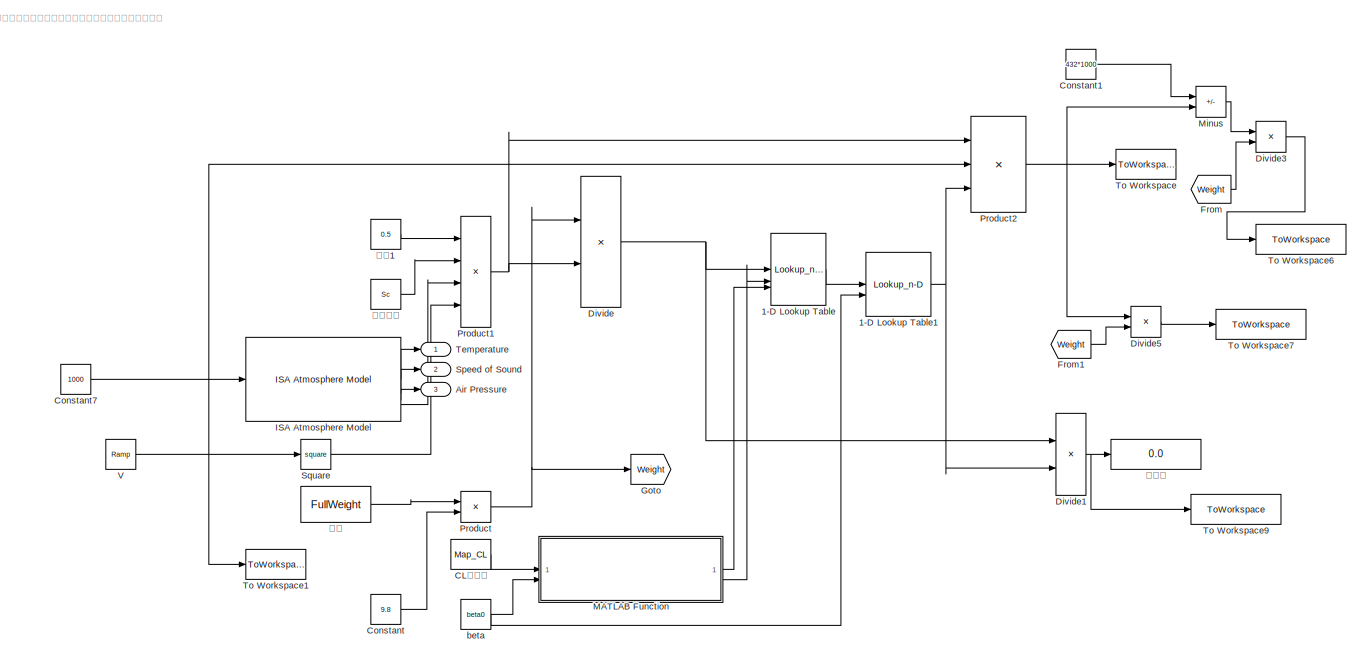
[diagram: root canvas - part 1/4, top right region]
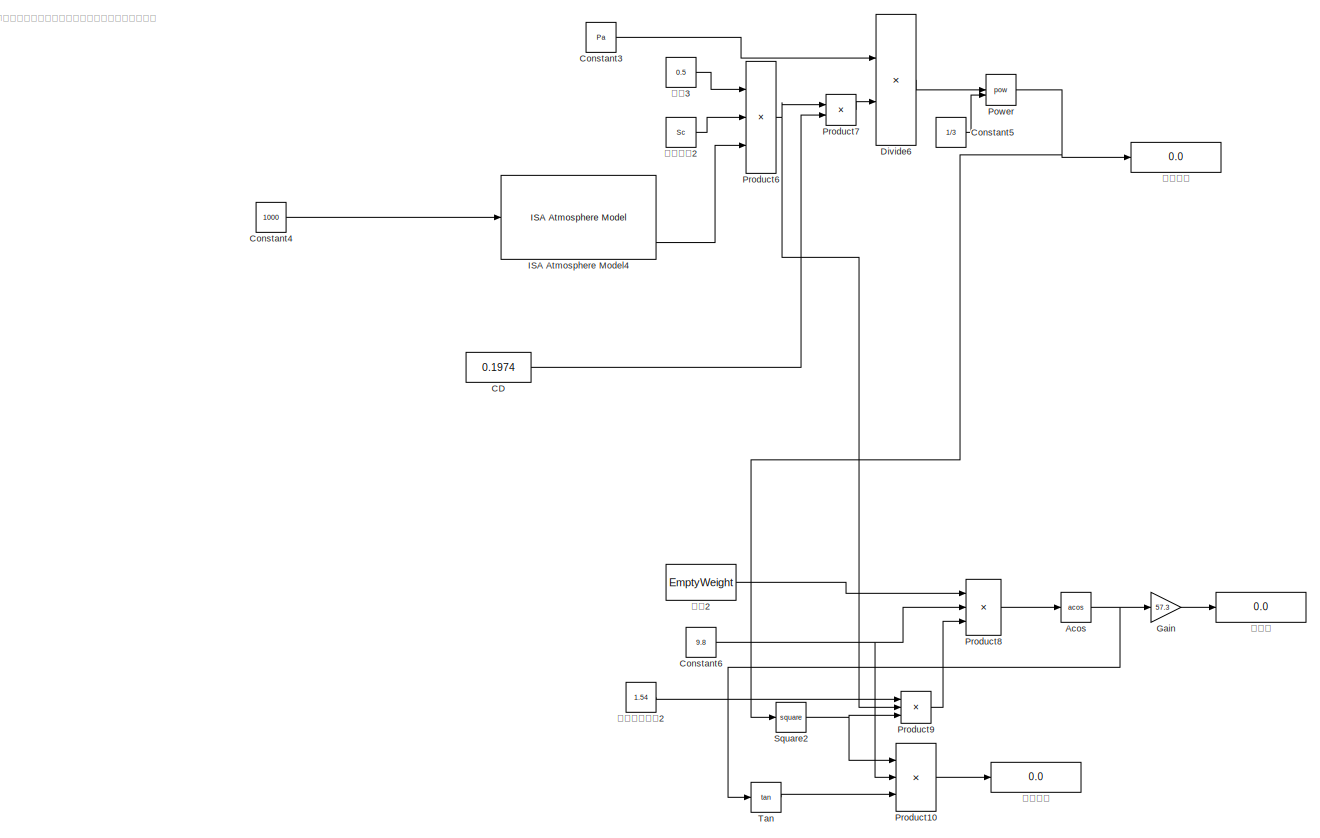
[diagram: root canvas - part 2/4, top left region]
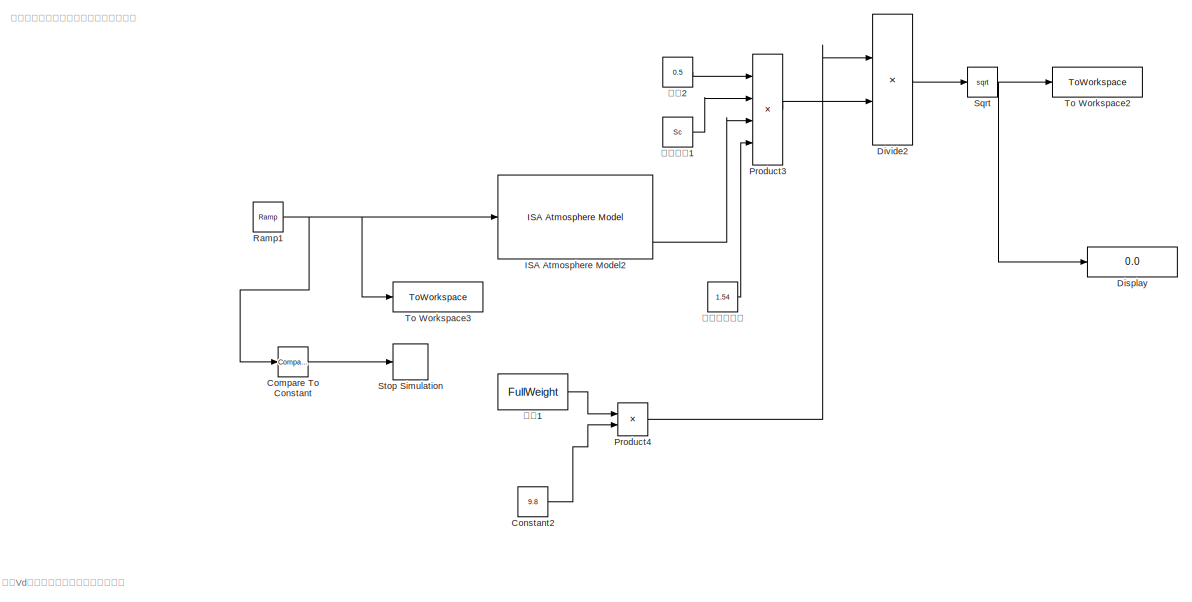
[diagram: root canvas - part 3/4, middle right region]
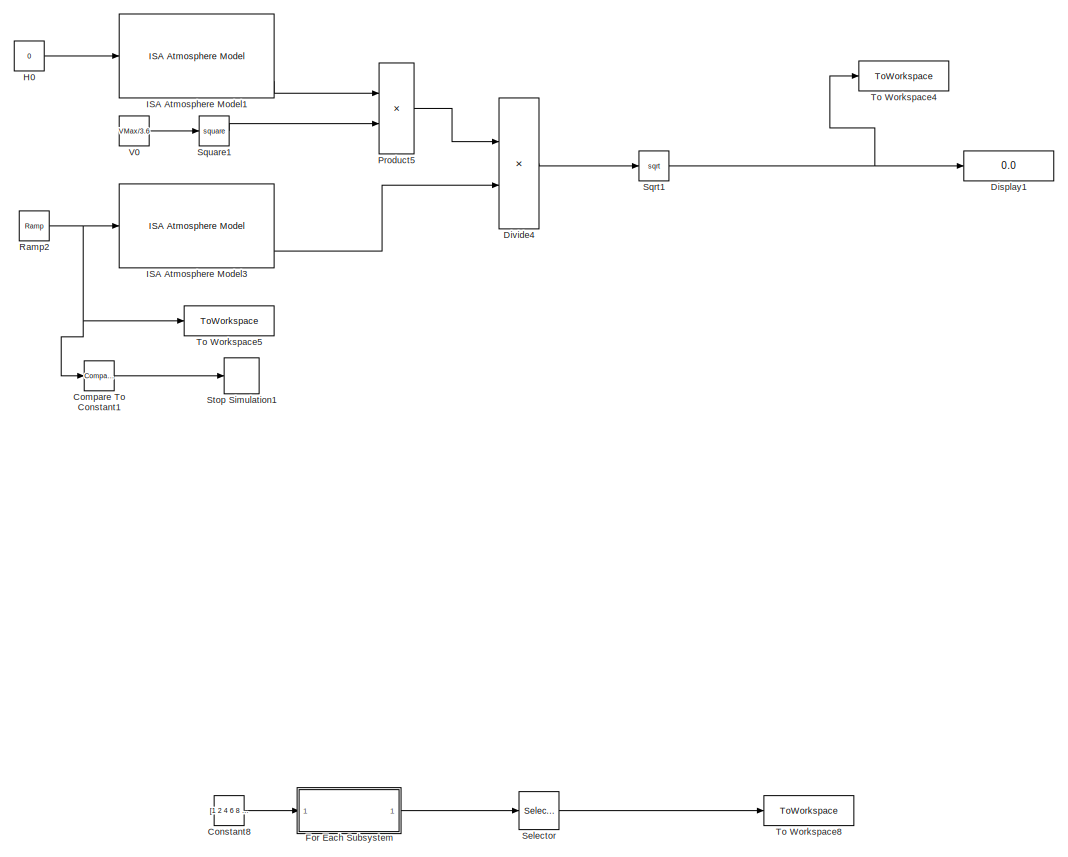
[diagram: root canvas - part 4/4, bottom right region]
MODEL slx_c84eef1aaa8e
KIND model
CONFIG AbsTol = auto
CONFIG EnableMultiTasking = off
CONFIG FixedStep = auto
CONFIG MaxStep = auto
CONFIG MinStep = auto
CONFIG RelTol = 1e-3
CONFIG SampleTimeConstraint = Unconstrained
CONFIG SolverName = VariableStepAuto
CONFIG StartTime = 0.0
CONFIG StopTime = 60
BLOCK [Lookup_n-D] 1-D Lookup Table
  BreakpointsForDimension1 = [-5:5]
  BreakpointsForDimension1Source = Input port
  InputPortMap = u0,p221,p5
  InternalRulePriority = Speed
  NumberOfTableDimensions = 1
  RndMeth = Simplest
  Table = tanh([-5:5])
  TableSource = Input port
BLOCK [Lookup_n-D] 1-D Lookup Table1
  BreakpointsForDimension1 = [0 4 8]
  BreakpointsForDimension2 = [0 5 10 15 20 25]
  InputPortMap = u0,u1
  InternalRulePriority = Speed
  RndMeth = Simplest
  Table = Map_CD
BLOCK [Trigonometry] Acos
  Operator = acos
BLOCK [Outport] Air Pressure
  Port = 3
BLOCK [Constant] CD
  Value = 0.1974
BLOCK [Constant] CL插值表
  Value = Map_CL
BLOCK [Reference] Compare To Constant  REF=simulink/Logic and Bit
Operations/Compare
To Constant
  SourceBlock = simulink/Logic and Bit\nOperations/Compare\nTo Constant
  SourceType = Compare To Constant
BLOCK [Reference] Compare To Constant1  REF=simulink/Logic and Bit
Operations/Compare
To Constant
  SourceBlock = simulink/Logic and Bit\nOperations/Compare\nTo Constant
  SourceType = Compare To Constant
BLOCK [Constant] Constant
  NameLocation = left
  Value = 9.8
BLOCK [Constant] Constant1
  Value = 432*1000
BLOCK [Constant] Constant2
  NameLocation = left
  Value = 9.8
BLOCK [Constant] Constant3
  NameLocation = left
  Value = Pa
BLOCK [Constant] Constant4
  Value = 1000
BLOCK [Constant] Constant5
  Value = 1/3
BLOCK [Constant] Constant6
  Value = 9.8
BLOCK [Constant] Constant7
  Value = 1000
BLOCK [Constant] Constant8
  Value = [1 2 4 6 8 10]*1000
BLOCK [Display] Display
  Decimation = 1
BLOCK [Display] Display1
  Decimation = 1
BLOCK [Product] Divide
  Inputs = */
BLOCK [Product] Divide1
  Inputs = */
BLOCK [Product] Divide2
  Inputs = */
BLOCK [Product] Divide3
  Inputs = */
BLOCK [Product] Divide4
  Inputs = */
BLOCK [Product] Divide5
  Inputs = */
BLOCK [Product] Divide6
  Inputs = */
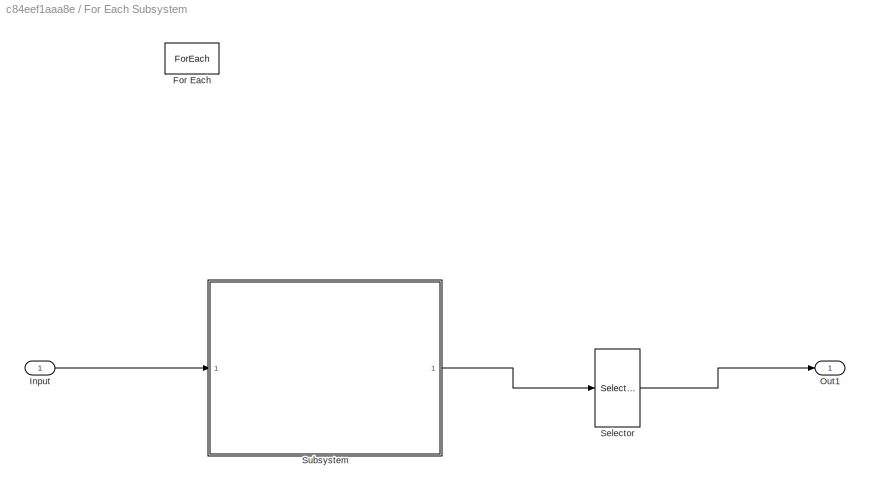
BLOCK [SubSystem] For Each Subsystem
  TreatAsAtomicUnit = on
BLOCK [ForEach] For Each Subsystem/For Each
  DisableCoverage = on
BLOCK [Inport] For Each Subsystem/Input
  Partition = on
  PartitionDimension = 2
  PartitionOffset = 0
  PartitionWidth = 1
BLOCK [Outport] For Each Subsystem/Out1
  ConcatenationDimension = 1
BLOCK [Selector] For Each Subsystem/Selector
  IndexOptions = Index vector (dialog)
  Indices = [1]
  InputPortWidth = 6
  OutputSizes = 1
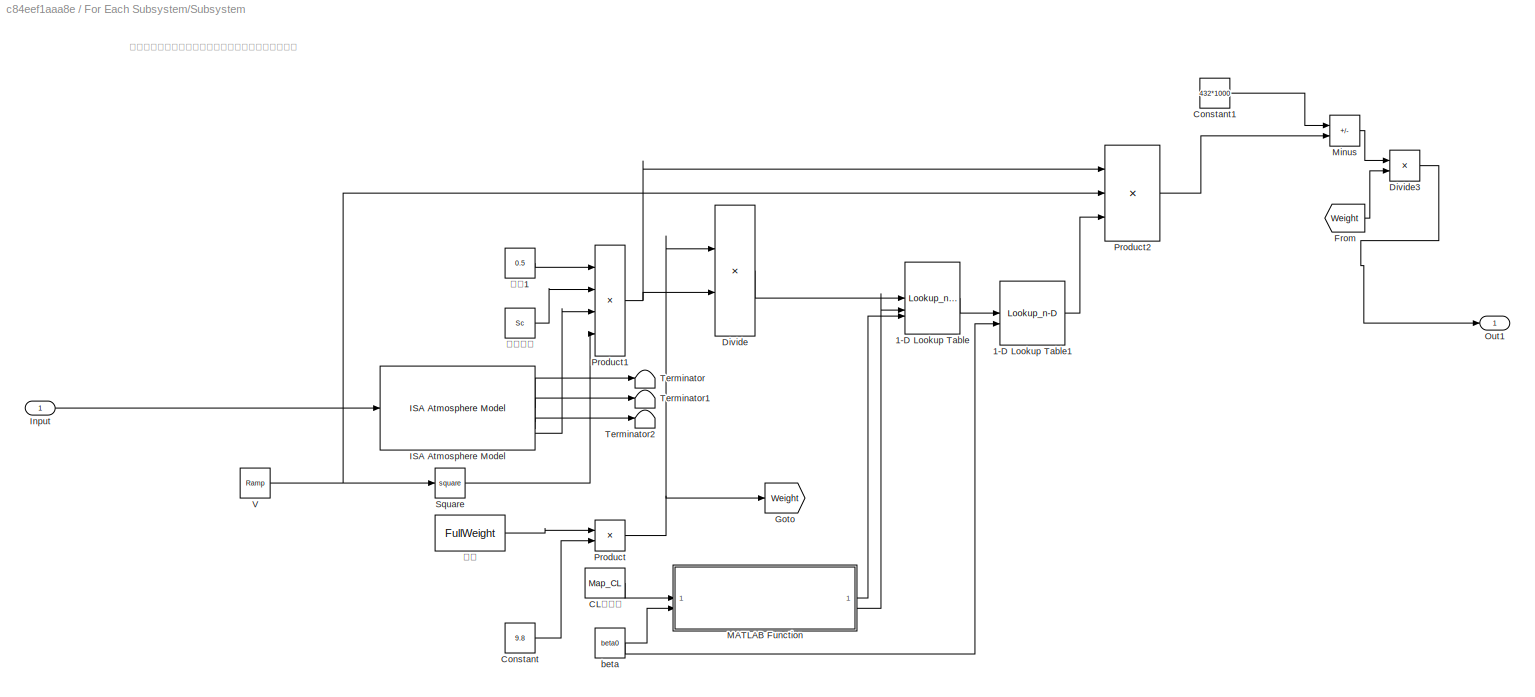
BLOCK [SubSystem] For Each Subsystem/Subsystem
BLOCK [Lookup_n-D] For Each Subsystem/Subsystem/1-D Lookup Table
  BreakpointsForDimension1 = [-5:5]
  BreakpointsForDimension1Source = Input port
  InputPortMap = u0,p221,p5
  InternalRulePriority = Speed
  NumberOfTableDimensions = 1
  RndMeth = Simplest
  Table = tanh([-5:5])
  TableSource = Input port
BLOCK [Lookup_n-D] For Each Subsystem/Subsystem/1-D Lookup Table1
  BreakpointsForDimension1 = [0 4 8]
  BreakpointsForDimension2 = [0 5 10 15 20 25]
  InputPortMap = u0,u1
  InternalRulePriority = Speed
  RndMeth = Simplest
  Table = Map_CD
BLOCK [Constant] For Each Subsystem/Subsystem/CL插值表
  Value = Map_CL
BLOCK [Constant] For Each Subsystem/Subsystem/Constant
  NameLocation = left
  Value = 9.8
BLOCK [Constant] For Each Subsystem/Subsystem/Constant1
  Value = 432*1000
BLOCK [Product] For Each Subsystem/Subsystem/Divide
  Inputs = */
BLOCK [Product] For Each Subsystem/Subsystem/Divide3
  Inputs = */
BLOCK [From] For Each Subsystem/Subsystem/From
  GotoTag = Weight
BLOCK [Goto] For Each Subsystem/Subsystem/Goto
  GotoTag = Weight
BLOCK [Reference] For Each Subsystem/Subsystem/ISA Atmosphere Model  REF=aerolibatmos2/ISA Atmosphere Model
  SourceBlock = aerolibatmos2/ISA Atmosphere Model
  SourceType = International Standard Atmosphere Model
BLOCK [Inport] For Each Subsystem/Subsystem/Input
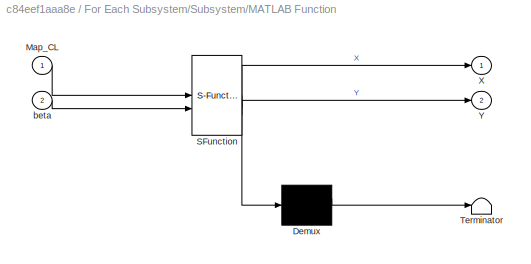
BLOCK [SubSystem] For Each Subsystem/Subsystem/MATLAB Function
  ErrorFcn = Stateflow.Translate.translate
  PermitHierarchicalResolution = ExplicitOnly
  SFBlockType = MATLAB Function
  TreatAsAtomicUnit = on
BLOCK [Demux] For Each Subsystem/Subsystem/MATLAB Function/ Demux 
  Outputs = 1
BLOCK [S-Function] For Each Subsystem/Subsystem/MATLAB Function/ SFunction 
  EnableBusSupport = on
  FunctionName = sf_sfun
  PortCounts = [2 3]
  SFcnIsStateOwnerBlock = off
  SFunctionDeploymentMode = off
  Tag = Stateflow S-Function 2
BLOCK [Terminator] For Each Subsystem/Subsystem/MATLAB Function/ Terminator 
BLOCK [Inport] For Each Subsystem/Subsystem/MATLAB Function/Map_CL
BLOCK [Outport] For Each Subsystem/Subsystem/MATLAB Function/X
BLOCK [Outport] For Each Subsystem/Subsystem/MATLAB Function/Y
  Port = 2
BLOCK [Inport] For Each Subsystem/Subsystem/MATLAB Function/beta
  Port = 2
BLOCK [Sum] For Each Subsystem/Subsystem/Minus
  IconShape = rectangular
  Inputs = +-
BLOCK [Outport] For Each Subsystem/Subsystem/Out1
BLOCK [Product] For Each Subsystem/Subsystem/Product
BLOCK [Product] For Each Subsystem/Subsystem/Product1
  Inputs = 4
BLOCK [Product] For Each Subsystem/Subsystem/Product2
  Inputs = 3
BLOCK [Math] For Each Subsystem/Subsystem/Square
  Operator = square
BLOCK [Terminator] For Each Subsystem/Subsystem/Terminator
BLOCK [Terminator] For Each Subsystem/Subsystem/Terminator1
BLOCK [Terminator] For Each Subsystem/Subsystem/Terminator2
BLOCK [Reference] For Each Subsystem/Subsystem/V  REF=simulink/Sources/Ramp
  SourceBlock = simulink/Sources/Ramp
  SourceType = Ramp
BLOCK [Constant] For Each Subsystem/Subsystem/beta
  Value = beta0
BLOCK [Constant] For Each Subsystem/Subsystem/参考面积
  Value = Sc
BLOCK [Constant] For Each Subsystem/Subsystem/质量
  Value = FullWeight
BLOCK [Constant] For Each Subsystem/Subsystem/速度1
  Value = 0.5
BLOCK [From] From
  GotoTag = Weight
BLOCK [From] From1
  GotoTag = Weight
BLOCK [Gain] Gain
  Gain = 57.3
BLOCK [Goto] Goto
  GotoTag = Weight
BLOCK [Constant] H0
  Value = 0
BLOCK [Reference] ISA Atmosphere Model  REF=aerolibatmos2/ISA Atmosphere Model
  SourceBlock = aerolibatmos2/ISA Atmosphere Model
  SourceType = International Standard Atmosphere Model
BLOCK [Reference] ISA Atmosphere Model1  REF=aerolibatmos2/ISA Atmosphere Model
  SourceBlock = aerolibatmos2/ISA Atmosphere Model
  SourceType = International Standard Atmosphere Model
BLOCK [Reference] ISA Atmosphere Model2  REF=aerolibatmos2/ISA Atmosphere Model
  SourceBlock = aerolibatmos2/ISA Atmosphere Model
  SourceType = International Standard Atmosphere Model
BLOCK [Reference] ISA Atmosphere Model3  REF=aerolibatmos2/ISA Atmosphere Model
  SourceBlock = aerolibatmos2/ISA Atmosphere Model
  SourceType = International Standard Atmosphere Model
BLOCK [Reference] ISA Atmosphere Model4  REF=aerolibatmos2/ISA Atmosphere Model
  SourceBlock = aerolibatmos2/ISA Atmosphere Model
  SourceType = International Standard Atmosphere Model
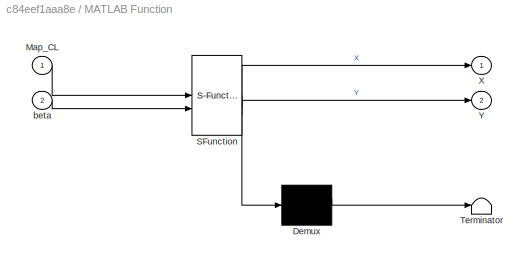
BLOCK [SubSystem] MATLAB Function
  ErrorFcn = Stateflow.Translate.translate
  PermitHierarchicalResolution = ExplicitOnly
  SFBlockType = MATLAB Function
  TreatAsAtomicUnit = on
BLOCK [Demux] MATLAB Function/ Demux 
  Outputs = 1
BLOCK [S-Function] MATLAB Function/ SFunction 
  EnableBusSupport = on
  FunctionName = sf_sfun
  PortCounts = [2 3]
  SFcnIsStateOwnerBlock = off
  SFunctionDeploymentMode = off
  Tag = Stateflow S-Function 1
BLOCK [Terminator] MATLAB Function/ Terminator 
BLOCK [Inport] MATLAB Function/Map_CL
BLOCK [Outport] MATLAB Function/X
BLOCK [Outport] MATLAB Function/Y
  Port = 2
BLOCK [Inport] MATLAB Function/beta
  Port = 2
BLOCK [Sum] Minus
  IconShape = rectangular
  Inputs = +-
BLOCK [Math] Power
  Operator = pow
BLOCK [Product] Product
BLOCK [Product] Product1
  Inputs = 4
BLOCK [Product] Product10
  Inputs = *//
BLOCK [Product] Product2
  Inputs = 3
BLOCK [Product] Product3
  Inputs = 4
BLOCK [Product] Product4
BLOCK [Product] Product5
BLOCK [Product] Product6
  Inputs = 3
BLOCK [Product] Product7
BLOCK [Product] Product8
  Inputs = **/
BLOCK [Product] Product9
  Inputs = 3
BLOCK [Reference] Ramp1  REF=simulink/Sources/Ramp
  SourceBlock = simulink/Sources/Ramp
  SourceType = Ramp
BLOCK [Reference] Ramp2  REF=simulink/Sources/Ramp
  SourceBlock = simulink/Sources/Ramp
  SourceType = Ramp
BLOCK [Selector] Selector
  IndexOptions = Index vector (dialog)
  Indices = [1]
  InputPortWidth = 6
  OutputSizes = 1
BLOCK [Outport] Speed of Sound
  Port = 2
BLOCK [Sqrt] Sqrt
BLOCK [Sqrt] Sqrt1
BLOCK [Math] Square
  Operator = square
BLOCK [Math] Square1
  Operator = square
BLOCK [Math] Square2
  Operator = square
BLOCK [Stop] Stop Simulation
BLOCK [Stop] Stop Simulation1
BLOCK [Trigonometry] Tan
  Operator = tan
BLOCK [Outport] Temperature
BLOCK [ToWorkspace] To Workspace
  FixptAsFi = on
  MaxDataPoints = inf
  SampleTime = -1
  SaveFormat = Structure
  VariableName = Pc
BLOCK [ToWorkspace] To Workspace1
  FixptAsFi = on
  MaxDataPoints = inf
  SampleTime = -1
  SaveFormat = Structure
  VariableName = Velocity
BLOCK [ToWorkspace] To Workspace2
  FixptAsFi = on
  MaxDataPoints = inf
  SampleTime = -1
  SaveFormat = Structure
  VariableName = VLeft
BLOCK [ToWorkspace] To Workspace3
  FixptAsFi = on
  MaxDataPoints = inf
  SampleTime = -1
  SaveFormat = Structure
  VariableName = LeftHeight
BLOCK [ToWorkspace] To Workspace4
  FixptAsFi = on
  MaxDataPoints = inf
  SampleTime = -1
  SaveFormat = Structure
  VariableName = VRight
BLOCK [ToWorkspace] To Workspace5
  FixptAsFi = on
  MaxDataPoints = inf
  SampleTime = -1
  SaveFormat = Structure
  VariableName = RightHeight
BLOCK [ToWorkspace] To Workspace6
  FixptAsFi = on
  MaxDataPoints = inf
  SampleTime = -1
  SaveFormat = Structure
  VariableName = VClimb
BLOCK [ToWorkspace] To Workspace7
  FixptAsFi = on
  MaxDataPoints = inf
  SampleTime = -1
  SaveFormat = Structure
  VariableName = VDescend
BLOCK [ToWorkspace] To Workspace8
  FixptAsFi = on
  MaxDataPoints = inf
  SampleTime = -1
  SaveFormat = Timeseries
  VariableName = simout
BLOCK [ToWorkspace] To Workspace9
  FixptAsFi = on
  MaxDataPoints = inf
  SampleTime = -1
  SaveFormat = Structure
  VariableName = LD
BLOCK [Reference] V  REF=simulink/Sources/Ramp
  SourceBlock = simulink/Sources/Ramp
  SourceType = Ramp
BLOCK [Constant] V0
  Value = VMax/3.6
BLOCK [Constant] beta
  Value = beta0
BLOCK [Display] 倾斜角
  Decimation = 1
BLOCK [Display] 升阻比
  Decimation = 1
BLOCK [Constant] 参考面积
  Value = Sc
BLOCK [Constant] 参考面积1
  Value = Sc
BLOCK [Constant] 参考面积2
  Value = Sc
BLOCK [Constant] 最大升力系数
  Value = 1.54
BLOCK [Constant] 最大升力系数2
  Value = 1.54
BLOCK [Display] 盘旋半径
  Decimation = 1
BLOCK [Display] 盘旋速度
  Decimation = 1
BLOCK [Constant] 质量
  Value = FullWeight
BLOCK [Constant] 质量1
  Value = FullWeight
BLOCK [Constant] 质量2
  Value = EmptyWeight
BLOCK [Constant] 速度1
  Value = 0.5
BLOCK [Constant] 速度2
  Value = 0.5
BLOCK [Constant] 速度3
  Value = 0.5
ANNOTATION (root): 计算不同高度和侧滑角下需用功率，预估最大平飞速度
ANNOTATION (root): 根据Vd俯冲速度，计算飞行包线右边界
ANNOTATION (root): 根据最大升力系数和最大可用功率计算最小盘旋半径
ANNOTATION (root): 根据最大升力系数，计算飞行包线左边界
ANNOTATION For Each Subsystem/Subsystem: 计算不同高度和侧滑角下需用功率，预估最大平飞速度
NET 1-D Lookup Table1:1 -> Divide1:2, Product2:3
LINE 1-D Lookup Table:1 -> 1-D Lookup Table1:1
NET Acos:1 -> Gain:1, Tan:1
LINE CD:1 -> Product7:2
LINE CL插值表:1 -> MATLAB Function:1
LINE Compare To Constant1:1 -> Stop Simulation1:1
LINE Compare To Constant:1 -> Stop Simulation:1
LINE Constant1:1 -> Minus:1
LINE Constant2:1 -> Product4:2
LINE Constant3:1 -> Divide6:1
LINE Constant4:1 -> ISA Atmosphere Model4:1
LINE Constant5:1 -> Power:2
NET Constant6:1 -> Product10:2, Product8:2
LINE Constant7:1 -> ISA Atmosphere Model:1
LINE Constant8:1 -> For Each Subsystem:1
LINE Constant:1 -> Product:2
NET Divide1:1 -> To Workspace9:1, 升阻比:1
LINE Divide2:1 -> Sqrt:1
LINE Divide3:1 -> To Workspace6:1
LINE Divide4:1 -> Sqrt1:1
LINE Divide5:1 -> To Workspace7:1
LINE Divide6:1 -> Power:1
NET Divide:1 -> 1-D Lookup Table:1, Divide1:1
LINE For Each Subsystem/Input:1 -> For Each Subsystem/Subsystem:1
LINE For Each Subsystem/Selector:1 -> For Each Subsystem/Out1:1
LINE For Each Subsystem/Subsystem/1-D Lookup Table1:1 -> For Each Subsystem/Subsystem/Product2:3
LINE For Each Subsystem/Subsystem/1-D Lookup Table:1 -> For Each Subsystem/Subsystem/1-D Lookup Table1:1
LINE For Each Subsystem/Subsystem/CL插值表:1 -> For Each Subsystem/Subsystem/MATLAB Function:1
LINE For Each Subsystem/Subsystem/Constant1:1 -> For Each Subsystem/Subsystem/Minus:1
LINE For Each Subsystem/Subsystem/Constant:1 -> For Each Subsystem/Subsystem/Product:2
LINE For Each Subsystem/Subsystem/Divide3:1 -> For Each Subsystem/Subsystem/Out1:1
LINE For Each Subsystem/Subsystem/Divide:1 -> For Each Subsystem/Subsystem/1-D Lookup Table:1
LINE For Each Subsystem/Subsystem/From:1 -> For Each Subsystem/Subsystem/Divide3:2
LINE For Each Subsystem/Subsystem/ISA Atmosphere Model:1 -> For Each Subsystem/Subsystem/Terminator:1
LINE For Each Subsystem/Subsystem/ISA Atmosphere Model:2 -> For Each Subsystem/Subsystem/Terminator1:1
LINE For Each Subsystem/Subsystem/ISA Atmosphere Model:3 -> For Each Subsystem/Subsystem/Terminator2:1
LINE For Each Subsystem/Subsystem/ISA Atmosphere Model:4 -> For Each Subsystem/Subsystem/Product1:3
LINE For Each Subsystem/Subsystem/Input:1 -> For Each Subsystem/Subsystem/ISA Atmosphere Model:1
LINE For Each Subsystem/Subsystem/MATLAB Function:1 -> For Each Subsystem/Subsystem/1-D Lookup Table:3
LINE For Each Subsystem/Subsystem/MATLAB Function:2 -> For Each Subsystem/Subsystem/1-D Lookup Table:2
LINE For Each Subsystem/Subsystem/Minus:1 -> For Each Subsystem/Subsystem/Divide3:1
NET For Each Subsystem/Subsystem/Product1:1 -> For Each Subsystem/Subsystem/Divide:2, For Each Subsystem/Subsystem/Product2:1
LINE For Each Subsystem/Subsystem/Product2:1 -> For Each Subsystem/Subsystem/Minus:2
NET For Each Subsystem/Subsystem/Product:1 -> For Each Subsystem/Subsystem/Divide:1, For Each Subsystem/Subsystem/Goto:1
LINE For Each Subsystem/Subsystem/Square:1 -> For Each Subsystem/Subsystem/Product1:4
NET For Each Subsystem/Subsystem/V:1 -> For Each Subsystem/Subsystem/Product2:2, For Each Subsystem/Subsystem/Square:1
NET For Each Subsystem/Subsystem/beta:1 -> For Each Subsystem/Subsystem/1-D Lookup Table1:2, For Each Subsystem/Subsystem/MATLAB Function:2
LINE For Each Subsystem/Subsystem/参考面积:1 -> For Each Subsystem/Subsystem/Product1:2
LINE For Each Subsystem/Subsystem/质量:1 -> For Each Subsystem/Subsystem/Product:1
LINE For Each Subsystem/Subsystem/速度1:1 -> For Each Subsystem/Subsystem/Product1:1
LINE For Each Subsystem/Subsystem:1 -> For Each Subsystem/Selector:1
LINE For Each Subsystem:1 -> Selector:1
LINE From1:1 -> Divide5:2
LINE From:1 -> Divide3:2
LINE Gain:1 -> 倾斜角:1
LINE H0:1 -> ISA Atmosphere Model1:1
LINE ISA Atmosphere Model1:4 -> Product5:1
LINE ISA Atmosphere Model2:4 -> Product3:3
LINE ISA Atmosphere Model3:4 -> Divide4:2
LINE ISA Atmosphere Model4:4 -> Product6:3
LINE ISA Atmosphere Model:1 -> Temperature:1
LINE ISA Atmosphere Model:2 -> Speed of Sound:1
LINE ISA Atmosphere Model:3 -> Air Pressure:1
LINE ISA Atmosphere Model:4 -> Product1:3
LINE MATLAB Function:1 -> 1-D Lookup Table:3
LINE MATLAB Function:2 -> 1-D Lookup Table:2
LINE Minus:1 -> Divide3:1
NET Power:1 -> Square2:1, 盘旋速度:1
LINE Product10:1 -> 盘旋半径:1
NET Product1:1 -> Divide:2, Product2:1
NET Product2:1 -> Divide5:1, Minus:2, To Workspace:1
LINE Product3:1 -> Divide2:2
LINE Product4:1 -> Divide2:1
LINE Product5:1 -> Divide4:1
NET Product6:1 -> Product7:1, Product9:2
LINE Product7:1 -> Divide6:2
LINE Product8:1 -> Acos:1
LINE Product9:1 -> Product8:3
NET Product:1 -> Divide:1, Goto:1
NET Ramp1:1 -> Compare To Constant:1, ISA Atmosphere Model2:1, To Workspace3:1
NET Ramp2:1 -> Compare To Constant1:1, ISA Atmosphere Model3:1, To Workspace5:1
LINE Selector:1 -> To Workspace8:1
NET Sqrt1:1 -> Display1:1, To Workspace4:1
NET Sqrt:1 -> Display:1, To Workspace2:1
LINE Square1:1 -> Product5:2
NET Square2:1 -> Product10:1, Product9:3
LINE Square:1 -> Product1:4
LINE Tan:1 -> Product10:3
LINE V0:1 -> Square1:1
NET V:1 -> Product2:2, Square:1, To Workspace1:1
NET beta:1 -> 1-D Lookup Table1:2, MATLAB Function:2
LINE 参考面积1:1 -> Product3:2
LINE 参考面积2:1 -> Product6:2
LINE 参考面积:1 -> Product1:2
LINE 最大升力系数2:1 -> Product9:1
LINE 最大升力系数:1 -> Product3:4
LINE 质量1:1 -> Product4:1
LINE 质量2:1 -> Product8:1
LINE 质量:1 -> Product:1
LINE 速度1:1 -> Product1:1
LINE 速度2:1 -> Product3:1
LINE 速度3:1 -> Product6:1
note: NET lines group one-source signal fan-out (src -> all destinations, sorted); 1:1 wires keep LINE
CHART MATLAB Function states=1 transitions=1
  STATE_LABEL 'eML_blk_kernel()'
  STATE_LABEL "SCRIPT:\n\nfunction [X,Y]=InvMatrix(Map_CL,beta)\nX=Map_CL(1:3,beta)';\nY=[0 4 8];\n\n\n"
CHART For Each
Subsystem/Subsystem/MATLAB Function states=1 transitions=1
  STATE_LABEL 'eML_blk_kernel()'
  STATE_LABEL "SCRIPT:\n\nfunction [X,Y]=InvMatrix(Map_CL,beta)\nX=Map_CL(1:3,beta)';\nY=[0 4 8];\n\n\n"
CHART  states=0 transitions=0
CHART  states=0 transitions=0
